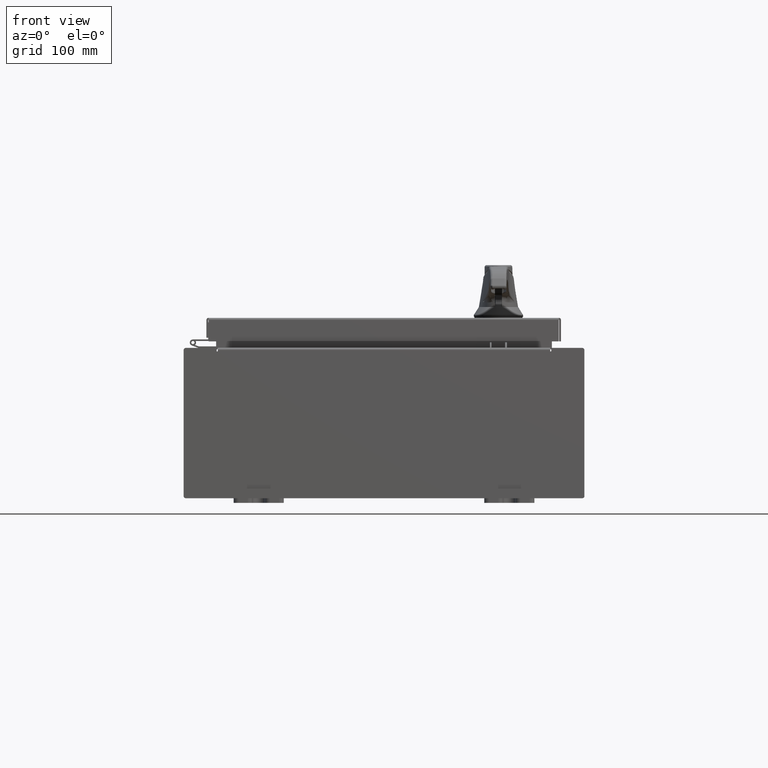
[diagram: clean part render]
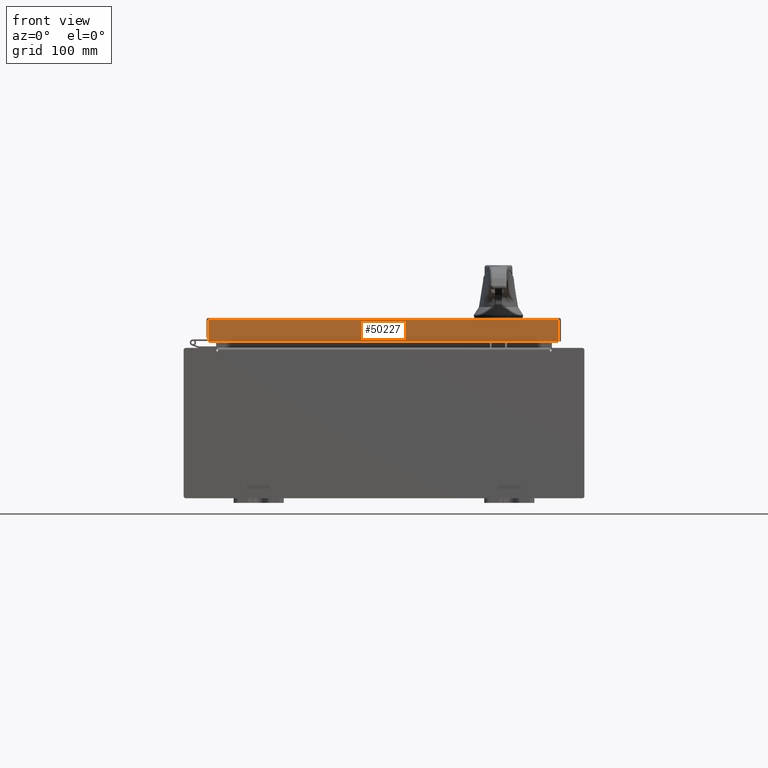
[diagram: same view with one face highlighted and labeled with its STEP entity id]
A machine part, front view. The second image highlights one B-rep face of the part: STEP entity #50227.
In plain terms, the highlighted planar face has unit normal (-0, 1, -0).
Its self-contained STEP definition (entity closure, byte-faithful):
#820 = CARTESIAN_POINT ( 'NONE',  ( -6.989157864376266200, -9.093999999999999400, -0.08769999999999997200 ) ) ;
#1356 = ORIENTED_EDGE ( 'NONE', *, *, #87602, .F. ) ;
#6680 = LINE ( 'NONE', #24066, #72116 ) ;
#11420 = CARTESIAN_POINT ( 'NONE',  ( 6.989157864376271500, -9.093999999999999400, -0.07469999999999972500 ) ) ;
#14445 = EDGE_CURVE ( 'NONE', #66978, #57701, #53442, .T. ) ;
#16695 = CARTESIAN_POINT ( 'NONE',  ( 6.989157864376271500, -9.094000000000001200, -0.9376999999999997600 ) ) ;
#19963 = DIRECTION ( 'NONE',  ( -0.0000000000000000000, -3.798629886902798700E-015, -1.000000000000000000 ) ) ;
#24066 = CARTESIAN_POINT ( 'NONE',  ( 7.078000000000002100, -9.094000000000001200, -0.9376999999999997600 ) ) ;
#26516 = VERTEX_POINT ( 'NONE', #48739 ) ;
#29117 = VECTOR ( 'NONE', #19963, 39.37007874015748100 ) ;
#29483 = AXIS2_PLACEMENT_3D ( 'NONE', #41881, #50396, #110241 ) ;
#40506 = ORIENTED_EDGE ( 'NONE', *, *, #90992, .T. ) ;
#41881 = CARTESIAN_POINT ( 'NONE',  ( 4.333225238023527900E-030, -9.093999999999999400, 3.480555384750563100E-014 ) ) ;
#48739 = CARTESIAN_POINT ( 'NONE',  ( -6.989157864376266200, -9.094000000000001200, -0.9376999999999979800 ) ) ;
#49260 = CARTESIAN_POINT ( 'NONE',  ( 6.989157864376271500, -9.093999999999999400, -0.08769999999999997200 ) ) ;
#50227 = ADVANCED_FACE ( 'NONE', ( #79026 ), #100534, .F. ) ;
#50396 = DIRECTION ( 'NONE',  ( -4.764927686412501300E-031, 1.000000000000000000, -3.798629886902798700E-015 ) ) ;
#53442 = LINE ( 'NONE', #76904, #96225 ) ;
#54489 = LINE ( 'NONE', #11420, #29117 ) ;
#57701 = VERTEX_POINT ( 'NONE', #49260 ) ;
#58294 = VECTOR ( 'NONE', #93543, 39.37007874015748100 ) ;
#62193 = EDGE_CURVE ( 'NONE', #98995, #26516, #6680, .T. ) ;
#66978 = VERTEX_POINT ( 'NONE', #820 ) ;
#67191 = ORIENTED_EDGE ( 'NONE', *, *, #14445, .F. ) ;
#68763 = ORIENTED_EDGE ( 'NONE', *, *, #62193, .F. ) ;
#71669 = EDGE_LOOP ( 'NONE', ( #67191, #40506, #68763, #1356 ) ) ;
#72116 = VECTOR ( 'NONE', #84538, 39.37007874015748100 ) ;
#75178 = DIRECTION ( 'NONE',  ( 1.000000000000000000, 4.764927686412501300E-031, -1.827821792760540600E-045 ) ) ;
#76904 = CARTESIAN_POINT ( 'NONE',  ( 7.078000000000002100, -9.093999999999999400, -0.08769999999999997200 ) ) ;
#77505 = CARTESIAN_POINT ( 'NONE',  ( -6.989157864376266200, -9.093999999999999400, 3.480555384750563100E-014 ) ) ;
#79026 = FACE_OUTER_BOUND ( 'NONE', #71669, .T. ) ;
#84538 = DIRECTION ( 'NONE',  ( -1.000000000000000000, -8.758115402030108600E-047, 1.254380613084042800E-016 ) ) ;
#86372 = LINE ( 'NONE', #77505, #58294 ) ;
#87602 = EDGE_CURVE ( 'NONE', #57701, #98995, #54489, .T. ) ;
#90992 = EDGE_CURVE ( 'NONE', #66978, #26516, #86372, .T. ) ;
#93543 = DIRECTION ( 'NONE',  ( 0.0000000000000000000, -3.798629886902798700E-015, -1.000000000000000000 ) ) ;
#96225 = VECTOR ( 'NONE', #75178, 39.37007874015748100 ) ;
#98995 = VERTEX_POINT ( 'NONE', #16695 ) ;
#100534 = PLANE ( 'NONE',  #29483 ) ;
#110241 = DIRECTION ( 'NONE',  ( 0.0000000000000000000, 3.798629886902798700E-015, 1.000000000000000000 ) ) ;